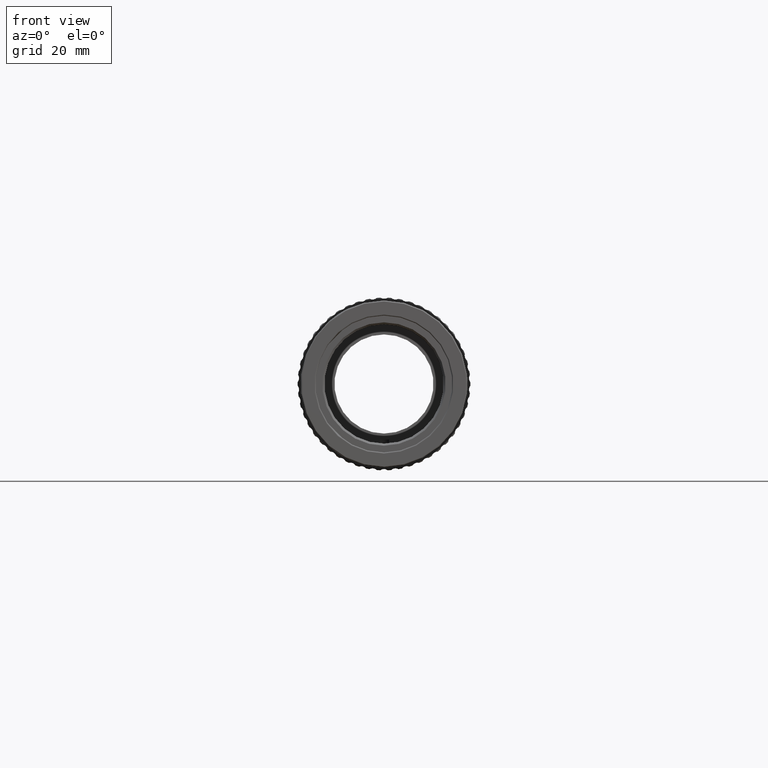
[diagram: clean part render]
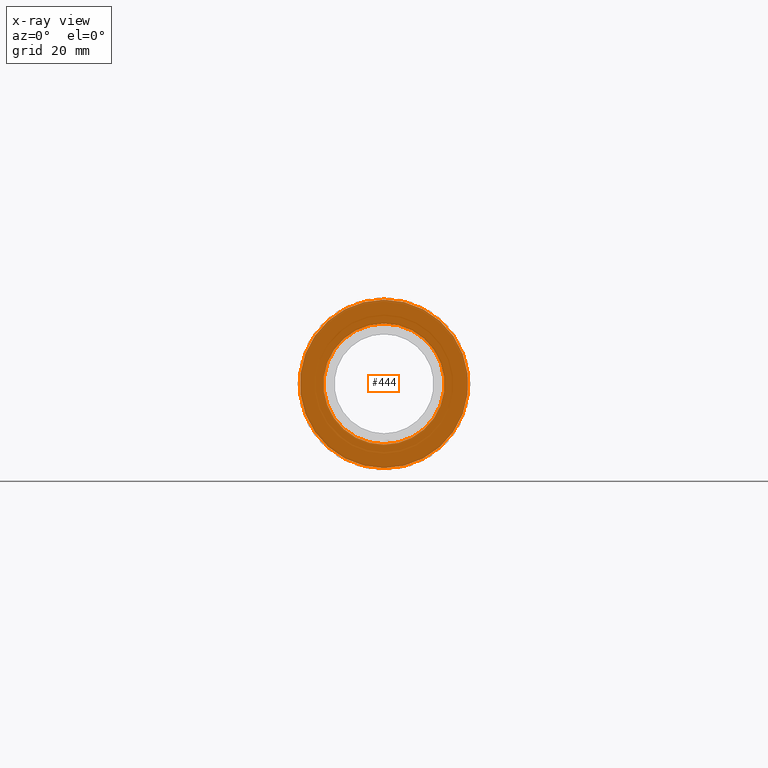
[diagram: x-ray — body ghosted, one internal face saturated and labeled with its STEP entity id]
A machine part, front view, then the same camera in x-ray: the body is ghosted and one INTERNAL B-rep face — a face not visible from any outside direction — is saturated and labeled: STEP entity #444.
In plain terms, the highlighted planar face has unit normal (-0, 1, 0).
Its self-contained STEP definition (entity closure, byte-faithful):
#268 = ORIENTED_EDGE ( 'NONE', *, *, #12100, .F. ) ;
#444 = ADVANCED_FACE ( 'NONE', ( #8136, #10306 ), #8522, .F. ) ;
#1112 = DIRECTION ( 'NONE',  ( 0.0000000000000000000, 0.0000000000000000000, 1.000000000000000000 ) ) ;
#2182 = CARTESIAN_POINT ( 'NONE',  ( -83.32263811662117800, 120.2870521842975500, 0.0000000000000000000 ) ) ;
#2871 = EDGE_LOOP ( 'NONE', ( #13447 ) ) ;
#3046 = CARTESIAN_POINT ( 'NONE',  ( -83.32263811662100700, 120.2870521842975500, 0.0000000000000000000 ) ) ;
#3280 = DIRECTION ( 'NONE',  ( 0.0000000000000000000, 0.0000000000000000000, 1.000000000000000000 ) ) ;
#3703 = DIRECTION ( 'NONE',  ( -0.0000000000000000000, 1.000000000000000000, -0.0000000000000000000 ) ) ;
#4768 = CIRCLE ( 'NONE', #13133, 14.69420568858003200 ) ;
#5670 = VERTEX_POINT ( 'NONE', #11264 ) ;
#8031 = CIRCLE ( 'NONE', #11454, 20.50000000000021700 ) ;
#8068 = CARTESIAN_POINT ( 'NONE',  ( -83.32263811662117800, 120.2870521842975500, 14.69420568858003200 ) ) ;
#8136 = FACE_OUTER_BOUND ( 'NONE', #13630, .T. ) ;
#8522 = PLANE ( 'NONE',  #8946 ) ;
#8781 = VERTEX_POINT ( 'NONE', #8068 ) ;
#8946 = AXIS2_PLACEMENT_3D ( 'NONE', #3046, #9186, #1112 ) ;
#9186 = DIRECTION ( 'NONE',  ( -0.0000000000000000000, 1.000000000000000000, 0.0000000000000000000 ) ) ;
#9608 = DIRECTION ( 'NONE',  ( -0.0000000000000000000, 1.000000000000000000, -0.0000000000000000000 ) ) ;
#10044 = CARTESIAN_POINT ( 'NONE',  ( -83.32263811662117800, 120.2870521842975500, 0.0000000000000000000 ) ) ;
#10306 = FACE_BOUND ( 'NONE', #2871, .T. ) ;
#11094 = DIRECTION ( 'NONE',  ( 0.0000000000000000000, 0.0000000000000000000, 1.000000000000000000 ) ) ;
#11264 = CARTESIAN_POINT ( 'NONE',  ( -83.32263811662117800, 120.2870521842975500, 20.50000000000021700 ) ) ;
#11454 = AXIS2_PLACEMENT_3D ( 'NONE', #2182, #9608, #3280 ) ;
#11781 = EDGE_CURVE ( 'NONE', #8781, #8781, #4768, .T. ) ;
#12100 = EDGE_CURVE ( 'NONE', #5670, #5670, #8031, .T. ) ;
#13133 = AXIS2_PLACEMENT_3D ( 'NONE', #10044, #3703, #11094 ) ;
#13447 = ORIENTED_EDGE ( 'NONE', *, *, #11781, .T. ) ;
#13630 = EDGE_LOOP ( 'NONE', ( #268 ) ) ;